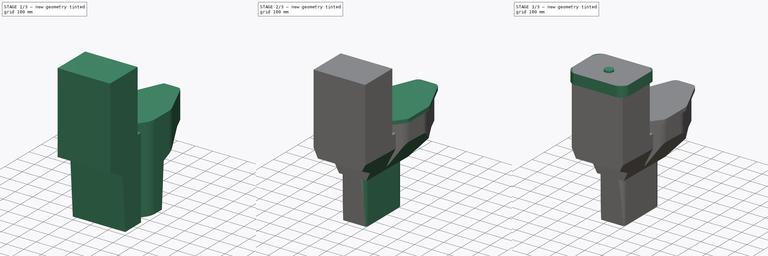
[diagram: build sequence overview — one tinted view per stage of 3, left to right]
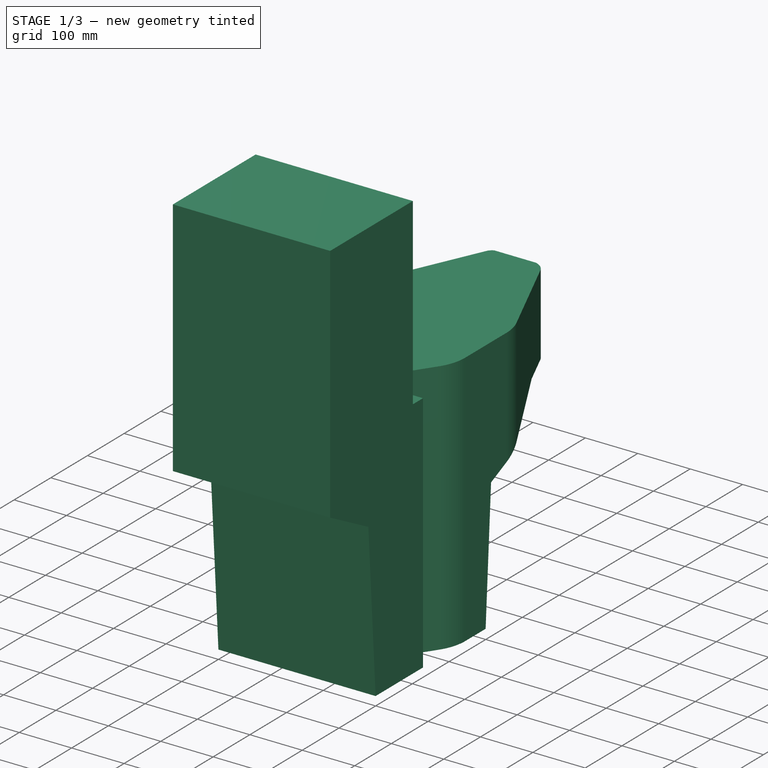
[diagram: stage 1 of 3 — iso view after this stage's code; geometry added in this stage tinted green]
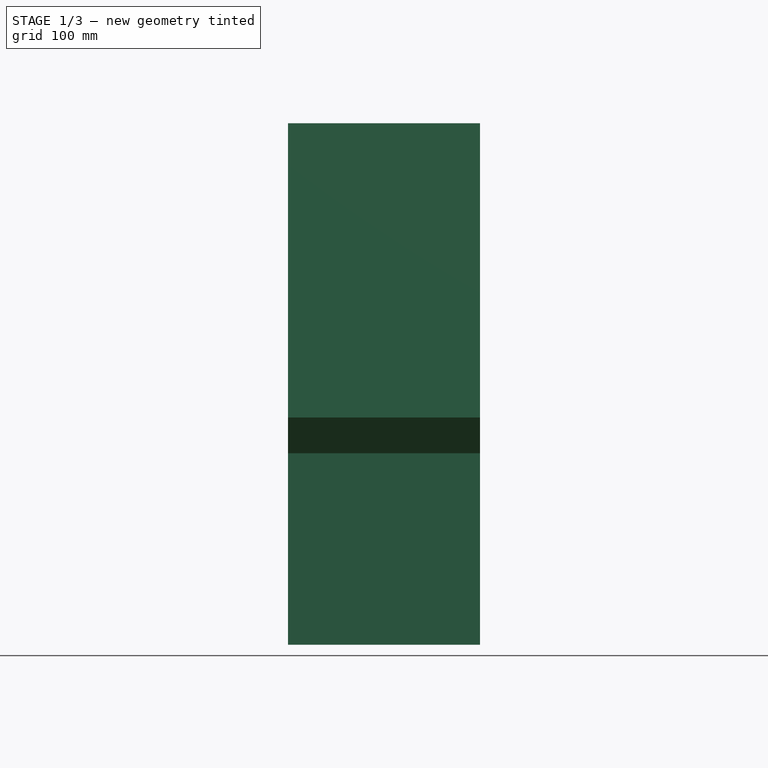
[diagram: stage 1 of 3 — front view after this stage's code; geometry added in this stage tinted green]
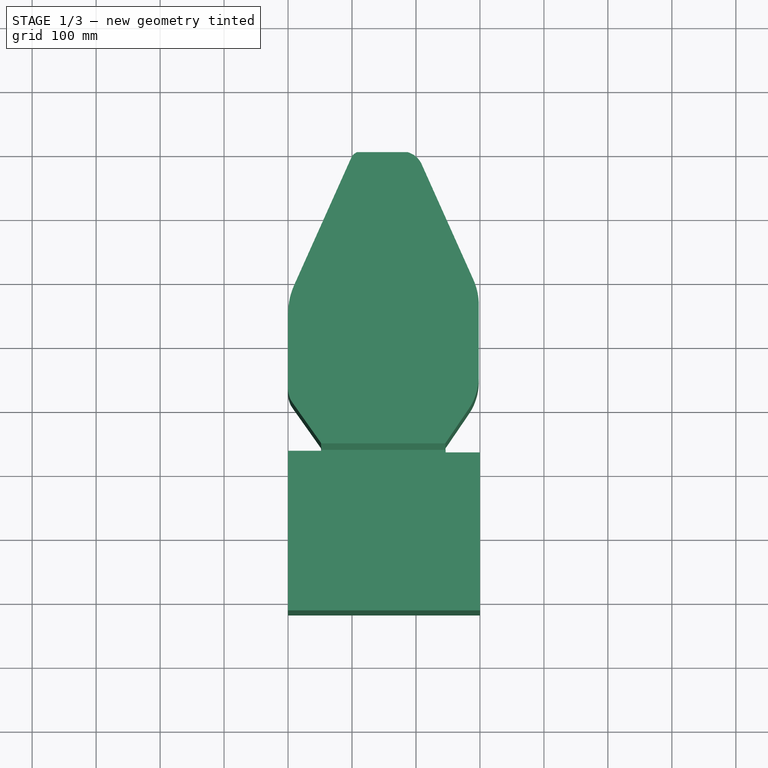
[diagram: stage 1 of 3 — top view after this stage's code; geometry added in this stage tinted green]
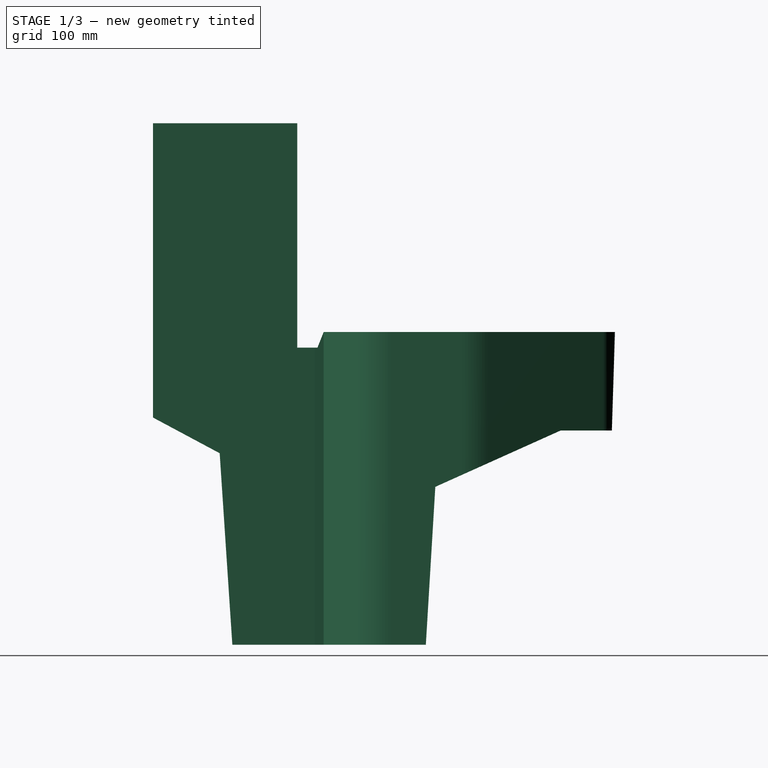
[diagram: stage 1 of 3 — right view after this stage's code; geometry added in this stage tinted green]
FCSTD DOCUMENT  (FreeCAD 1.0R39319 (Git))
Label: toilet
License: All rights reserved
LicenseURL: https://en.wikipedia.org/wiki/All_rights_reserved
objects: Sketcher::SketchObject×7, PartDesign::Pad×4, PartDesign::Pocket×3, PartDesign::Body×1
note: 36 computed .brp shape members not serialized (recipe doc carries the construction recipe); baked Part::Feature solids carry a one-line shape summary decoded from their .brp

FEATURE [Sketcher::SketchObject] Sketch
  ArcFitTolerance = 1e-06
  AttachmentSupport = -> [YZ_Plane]
  FullyConstrained = false
  MakeInternals = false
  MapMode = 5
  Placement = pos=(0,0,0) rot=(0.57735,0.57735,0.57735;2.0944rad)
  sketch-geometry (13):
    g0: LineSegment StartX=0 StartY=0 StartZ=0 EndX=-19.7955 EndY=299.346 EndZ=0
    g1: LineSegment StartX=-19.7955 StartY=299.346 StartZ=0 EndX=-123.951 EndY=355.087 EndZ=0
    g2: LineSegment StartX=-123.951 StartY=355.087 StartZ=0 EndX=-123.951 EndY=815.087 EndZ=0
    g3: LineSegment StartX=0 StartY=0 StartZ=0 EndX=302.48 EndY=0 EndZ=0
    g4: LineSegment StartX=302.48 StartY=0 StartZ=0 EndX=317.295 EndY=246.799 EndZ=0
    g5: LineSegment StartX=317.295 StartY=246.799 StartZ=0 EndX=513.113 EndY=334.823 EndZ=0
    g6: LineSegment StartX=593.243 StartY=334.823 StartZ=0 EndX=513.113 EndY=334.823 EndZ=0
    g7: LineSegment StartX=593.243 StartY=334.823 StartZ=0 EndX=598.112 EndY=488.795 EndZ=0
    g8: LineSegment StartX=598.112 StartY=488.795 StartZ=0 EndX=142.857 EndY=488.795 EndZ=0
    g9: LineSegment StartX=142.857 StartY=488.795 StartZ=0 EndX=133.119 EndY=464.45 EndZ=0
    g10: LineSegment StartX=101.47 StartY=464.45 StartZ=0 EndX=101.47 EndY=815.087 EndZ=0
    g11: LineSegment StartX=-123.951 StartY=815.087 StartZ=0 EndX=101.47 EndY=815.087 EndZ=0
    g12: LineSegment StartX=101.47 StartY=464.45 StartZ=0 EndX=133.119 EndY=464.45 EndZ=0
  constraints (23):
    c: Distance(g0) = 300
    c: Coincident(g0,g-1)
    c: Coincident(g1,g0)
    c: Distance(g2) = 460
    c: Coincident(g2,g1)
    c: Vertical(g2)
    c: Coincident(g3,g0)
    c: PointOnObject(g3,g-1)
    c: Coincident(g4,g3)
    c: Coincident(g5,g4)
    c: Coincident(g6,g5)
    c: Horizontal(g6)
    c: Coincident(g7,g6)
    c: Coincident(g8,g7)
    c: Horizontal(g8)
    c: Coincident(g9,g8)
    c: Vertical(g10)
    c: Coincident(g11,g2)
    c: Coincident(g11,g10)
    c: Horizontal(g11)
    c: Coincident(g12,g10)
    c: Coincident(g12,g9)
    c: Horizontal(g12)
FEATURE [PartDesign::Pad] Pad
  Direction = (1,0,0)
  Length = 300
  Length2 = 10
  Placement = pos=(0,0,0) rot=(1,1,1;2.0944rad)
  Profile = -> Sketch
  ReferenceAxis = -> Sketch [N_Axis]
  Refine = true
  Suppressed = false
  Type = 0
FEATURE [Sketcher::SketchObject] Sketch001
  ArcFitTolerance = 1e-06
  AttachmentSupport = -> [Pad]
  FullyConstrained = false
  MakeInternals = false
  MapMode = 5
  Placement = pos=(-5.43e-14,1.628e-13,488.795) rot=(0,0,-1;1.5708rad)
  sketch-geometry (26):
    g0: LineSegment StartX=-398.686 StartY=289.727 StartZ=0 EndX=-579.184 EndY=208.886 EndZ=0
    g1: LineSegment StartX=-599.346 StartY=177.765 StartZ=0 EndX=-599.346 EndY=114.283 EndZ=0
    g2: LineSegment StartX=-589.294 StartY=98.7641 StartZ=0 EndX=-390.58 EndY=9.71923 EndZ=0
    g3: LineSegment StartX=-345.122 StartY=0 StartZ=0 EndX=-228.798 EndY=0 EndZ=0
    g4: LineSegment StartX=-206.249 StartY=7.17371 StartZ=0 EndX=-143.518 EndY=51.5851 EndZ=0
    g5: LineSegment StartX=-143.518 StartY=51.5851 StartZ=0 EndX=-131.656 EndY=52.4323 EndZ=0
    g6: LineSegment StartX=-131.656 StartY=52.4323 StartZ=0 EndX=-131.656 EndY=-48.3921 EndZ=0
    g7: LineSegment StartX=-131.656 StartY=-48.3921 StartZ=0 EndX=-645.098 EndY=-48.3921 EndZ=0
    g8: LineSegment StartX=-645.098 StartY=-48.3921 StartZ=0 EndX=-645.098 EndY=347.28 EndZ=0
    g9: LineSegment StartX=-645.098 StartY=347.28 StartZ=0 EndX=-129.114 EndY=347.28 EndZ=0
    g10: LineSegment StartX=-129.114 StartY=347.28 StartZ=0 EndX=-129.114 EndY=246.456 EndZ=0
    g11: LineSegment StartX=-129.114 StartY=246.456 StartZ=0 EndX=-142.67 EndY=245.609 EndZ=0
    g12: LineSegment StartX=-142.67 StartY=245.609 StartZ=0 EndX=-196.823 EndY=282.504 EndZ=0
    g13: LineSegment StartX=-247.54 StartY=298.139 StartZ=0 EndX=-359.325 EndY=298.139 EndZ=0
    g14: ArcOfCircle CenterX=-565.245 CenterY=177.765 CenterZ=0 NormalX=0 NormalY=0 NormalZ=1 AngleXU=0 Radius=34.1008 StartAngle=1.99188 EndAngle=3.14159
    g15: GeomPoint [constr] X=-599.346 Y=199.856 Z=0
    g16: ArcOfCircle CenterX=-582.34 CenterY=114.283 CenterZ=0 NormalX=0 NormalY=0 NormalZ=1 AngleXU=0 Radius=17.0053 StartAngle=3.14159 EndAngle=4.29111
    g17: GeomPoint [constr] X=-599.346 Y=103.268 Z=0
    g18: ArcOfCircle CenterX=-345.122 CenterY=111.163 CenterZ=0 NormalX=0 NormalY=0 NormalZ=1 AngleXU=0 Radius=111.163 StartAngle=4.29111 EndAngle=4.71239
    g19: GeomPoint [constr] X=-368.89 Y=0 Z=0
    g20: ArcOfCircle CenterX=-228.798 CenterY=39.0235 CenterZ=0 NormalX=0 NormalY=0 NormalZ=1 AngleXU=0 Radius=39.0235 StartAngle=4.71239 EndAngle=5.32844
    g21: GeomPoint [constr] X=-216.382 Y=0 Z=0
    g22: ArcOfCircle CenterX=-359.325 CenterY=201.844 CenterZ=0 NormalX=0 NormalY=0 NormalZ=1 AngleXU=0 Radius=96.295 StartAngle=1.5708 EndAngle=1.99188
    g23: GeomPoint [constr] X=-379.904 Y=298.139 Z=0
    g24: ArcOfCircle CenterX=-247.54 CenterY=208.065 CenterZ=0 NormalX=0 NormalY=0 NormalZ=1 AngleXU=0 Radius=90.0738 StartAngle=0.972718 EndAngle=1.5708
    g25: GeomPoint [constr] X=-219.771 Y=298.139 Z=0
  constraints (41):
    c: Vertical(g1)
    c: PointOnObject(g19,g-1)
    c: PointOnObject(g21,g-1)
    c: Coincident(g5,g4)
    c: Coincident(g6,g5)
    c: Vertical(g6)
    c: Coincident(g7,g6)
    c: Horizontal(g7)
    c: Coincident(g8,g7)
    c: Vertical(g8)
    c: Coincident(g9,g8)
    c: Horizontal(g9)
    c: Coincident(g10,g9)
    c: Vertical(g10)
    c: Coincident(g11,g10)
    c: Coincident(g12,g11)
    c: Horizontal(g13)
    c: PointOnObject(g15,g1)
    c: PointOnObject(g15,g0)
    c: Tangent(g1,g14) = -1.5708
    c: Tangent(g0,g14) = -1.5708
    c: PointOnObject(g17,g1)
    c: PointOnObject(g17,g2)
    c: Tangent(g1,g16) = -1.5708
    c: Tangent(g2,g16) = -1.5708
    c: PointOnObject(g19,g2)
    c: PointOnObject(g19,g3)
    c: Tangent(g2,g18) = -1.5708
    c: Tangent(g3,g18) = -1.5708
    c: PointOnObject(g21,g3)
    c: PointOnObject(g21,g4)
    c: Tangent(g3,g20) = -1.5708
    c: Tangent(g4,g20) = -1.5708
    c: PointOnObject(g23,g0)
    c: PointOnObject(g23,g13)
    c: Tangent(g0,g22) = -1.5708
    c: Tangent(g13,g22) = -1.5708
    c: PointOnObject(g25,g13)
    c: PointOnObject(g25,g12)
    c: Tangent(g13,g24) = -1.5708
    c: Tangent(g12,g24) = -1.5708
FEATURE [PartDesign::Pocket] Pocket
  BaseFeature = -> Pad
  Direction = (0,0,-1)
  Length = 5
  Length2 = 5
  Placement = pos=(0,0,0) rot=(1,1,1;2.0944rad)
  Profile = -> Sketch001
  ReferenceAxis = -> Sketch001 [N_Axis]
  Refine = true
  Suppressed = false
  Type = 1
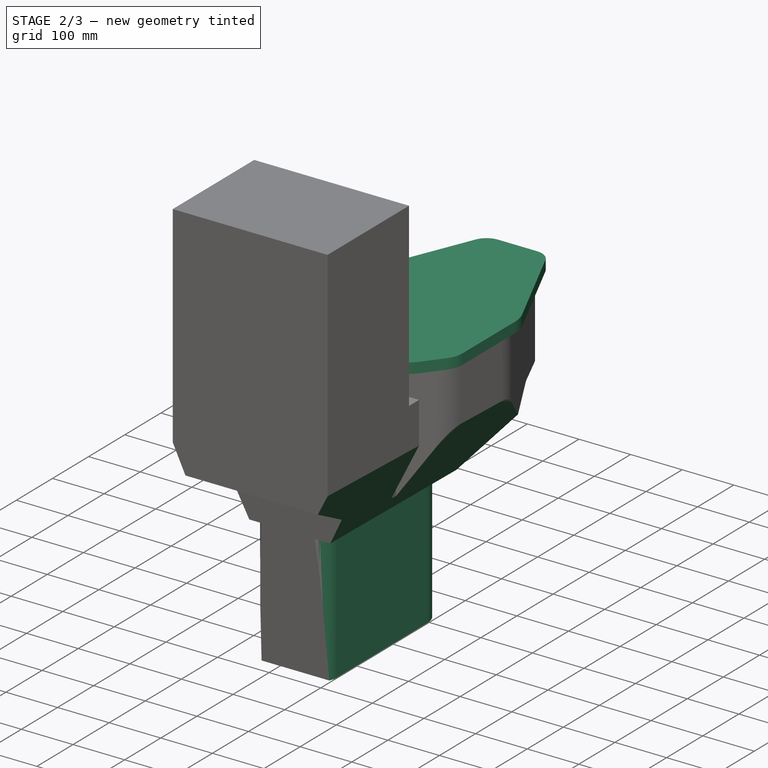
[diagram: stage 2 of 3 — iso view after this stage's code; geometry added in this stage tinted green]
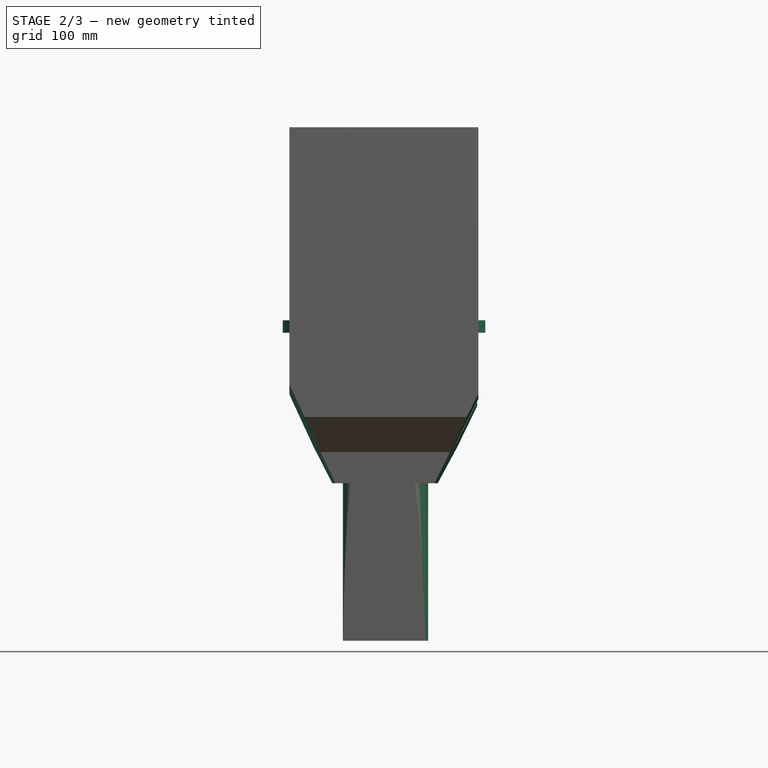
[diagram: stage 2 of 3 — front view after this stage's code; geometry added in this stage tinted green]
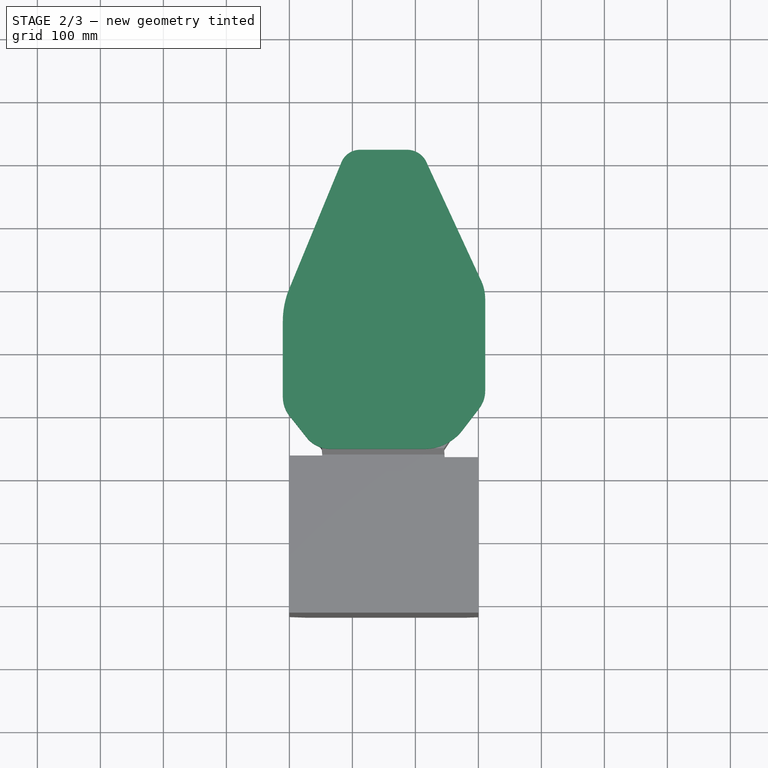
[diagram: stage 2 of 3 — top view after this stage's code; geometry added in this stage tinted green]
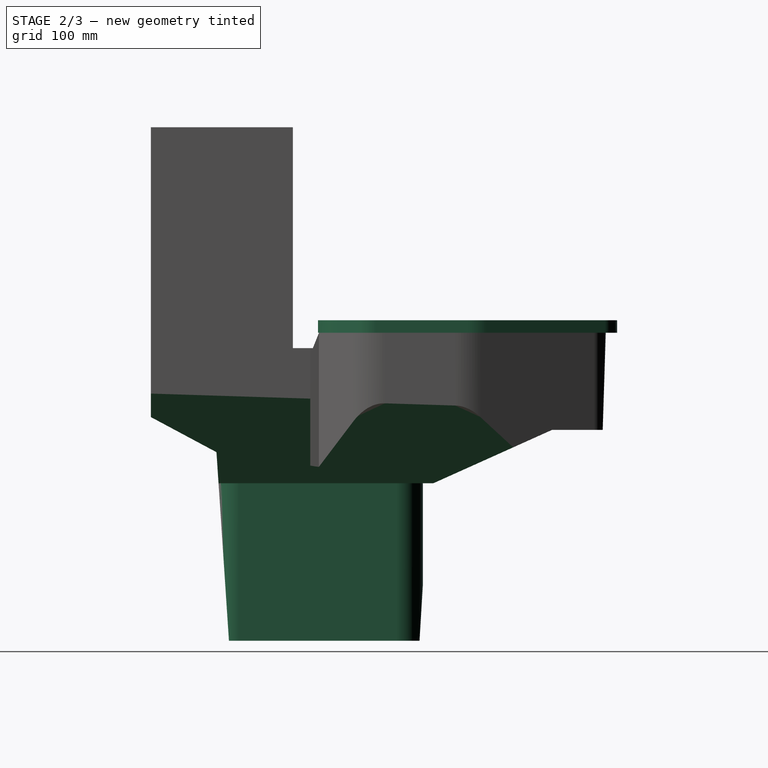
[diagram: stage 2 of 3 — right view after this stage's code; geometry added in this stage tinted green]
FEATURE [Sketcher::SketchObject] Sketch002
  ArcFitTolerance = 1e-06
  AttachmentSupport = -> [Pocket]
  FullyConstrained = false
  MakeInternals = false
  MapMode = 5
  Placement = pos=(0,0,0) rot=(0.707107,0.707107,0;3.14159rad)
  sketch-geometry (16):
    g0: LineSegment StartX=-178.085 StartY=365.735 StartZ=0 EndX=-178.085 EndY=-124.152 EndZ=0
    g1: LineSegment StartX=-178.085 StartY=-124.152 StartZ=0 EndX=640.697 EndY=-124.152 EndZ=0
    g2: LineSegment StartX=640.697 StartY=-124.152 StartZ=0 EndX=640.697 EndY=365.735 EndZ=0
    g3: LineSegment StartX=640.697 StartY=365.735 StartZ=0 EndX=-178.085 EndY=365.735 EndZ=0
    g4: LineSegment StartX=-19.8534 StartY=184.188 StartZ=0 EndX=-19.8534 EndY=108.754 EndZ=0
    g5: LineSegment StartX=3.92612 StartY=84.9741 StartZ=0 EndX=257.439 EndY=84.9741 EndZ=0
    g6: LineSegment StartX=307.73 StartY=135.265 StartZ=0 EndX=307.73 EndY=178.492 EndZ=0
    g7: LineSegment StartX=265.921 StartY=220.301 StartZ=0 EndX=16.2601 EndY=220.301 EndZ=0
    g8: ArcOfCircle CenterX=16.2601 CenterY=184.188 CenterZ=0 NormalX=0 NormalY=0 NormalZ=1 AngleXU=0 Radius=36.1134 StartAngle=1.5708 EndAngle=3.14159
    g9: GeomPoint [constr] X=-19.8534 Y=220.301 Z=0
    g10: ArcOfCircle CenterX=3.92612 CenterY=108.754 CenterZ=0 NormalX=0 NormalY=0 NormalZ=1 AngleXU=0 Radius=23.7795 StartAngle=3.14159 EndAngle=4.71239
    g11: GeomPoint [constr] X=-19.8534 Y=84.9741 Z=0
    g12: ArcOfCircle CenterX=257.439 CenterY=135.265 CenterZ=0 NormalX=0 NormalY=0 NormalZ=1 AngleXU=0 Radius=50.2909 StartAngle=4.71239 EndAngle=6.28319
    g13: GeomPoint [constr] X=307.73 Y=84.9741 Z=0
    g14: ArcOfCircle CenterX=265.921 CenterY=178.492 CenterZ=0 NormalX=0 NormalY=0 NormalZ=1 AngleXU=0 Radius=41.8086 StartAngle=3e-16 EndAngle=1.5708
    g15: GeomPoint [constr] X=307.73 Y=220.301 Z=0
  constraints (28):
    c: Coincident(g0,g1)
    c: Coincident(g1,g2)
    c: Coincident(g2,g3)
    c: Coincident(g3,g0)
    c: Vertical(g0)
    c: Vertical(g2)
    c: Horizontal(g1)
    c: Horizontal(g3)
    c: Vertical(g4)
    c: Vertical(g6)
    c: Horizontal(g5)
    c: Horizontal(g7)
    c: PointOnObject(g9,g4)
    c: PointOnObject(g9,g7)
    c: Tangent(g4,g8) = -1.5708
    c: Tangent(g7,g8) = -1.5708
    c: PointOnObject(g11,g4)
    c: PointOnObject(g11,g5)
    c: Tangent(g4,g10) = -1.5708
    c: Tangent(g5,g10) = -1.5708
    c: PointOnObject(g13,g5)
    c: PointOnObject(g13,g6)
    c: Tangent(g5,g12) = -1.5708
    c: Tangent(g6,g12) = -1.5708
    c: PointOnObject(g15,g7)
    c: PointOnObject(g15,g6)
    c: Tangent(g7,g14) = -1.5708
    c: Tangent(g6,g14) = -1.5708
FEATURE [PartDesign::Pocket] Pocket001
  BaseFeature = -> Pocket
  Direction = (0,0,1)
  Length = 250
  Length2 = 5
  Placement = pos=(0,0,0) rot=(1,1,1;2.0944rad)
  Profile = -> Sketch002
  ReferenceAxis = -> Sketch002 [N_Axis]
  Refine = true
  Suppressed = false
  Type = 0
FEATURE [Sketcher::SketchObject] Sketch003
  ArcFitTolerance = 1e-06
  AttachmentSupport = -> [Pocket001]
  FullyConstrained = false
  MakeInternals = false
  MapMode = 5
  Placement = pos=(1.436e-13,582.073,-18.4068) rot=(0.583339,0.583339,0.565183;4.17044rad)
  sketch-geometry (10):
    g0: LineSegment StartX=435.499 StartY=463.28 StartZ=0 EndX=-86.9749 EndY=463.28 EndZ=0
    g1: LineSegment StartX=-86.9749 StartY=463.28 StartZ=0 EndX=-86.9749 EndY=225.515 EndZ=0
    g2: LineSegment StartX=-86.9749 StartY=-130.246 StartZ=0 EndX=441.644 EndY=-130.246 EndZ=0
    g3: LineSegment StartX=435.499 StartY=323.835 StartZ=0 EndX=240.395 EndY=225.515 EndZ=0
    g4: LineSegment StartX=232.713 StartY=81.1069 StartZ=0 EndX=441.644 EndY=-18.7497 EndZ=0
    g5: LineSegment StartX=441.644 StartY=-18.7497 StartZ=0 EndX=441.644 EndY=-130.246 EndZ=0
    g6: LineSegment StartX=435.499 StartY=323.835 StartZ=0 EndX=435.499 EndY=463.28 EndZ=0
    g7: LineSegment StartX=240.395 StartY=225.515 StartZ=0 EndX=-86.9749 EndY=225.515 EndZ=0
    g8: LineSegment StartX=232.713 StartY=81.1069 StartZ=0 EndX=-86.9749 EndY=81.1069 EndZ=0
    g9: LineSegment StartX=-86.9749 StartY=81.1069 StartZ=0 EndX=-86.9749 EndY=-130.246 EndZ=0
  constraints (18):
    c: Coincident(g0,g1)
    c: Coincident(g9,g2)
    c: Horizontal(g0)
    c: Horizontal(g2)
    c: Vertical(g1)
    c: Coincident(g5,g4)
    c: Vertical(g5)
    c: Coincident(g6,g3)
    c: Vertical(g6)
    c: Coincident(g7,g3)
    c: Horizontal(g7)
    c: Coincident(g8,g4)
    c: PointOnObject(g8,g9)
    c: Horizontal(g8)
    c: Coincident(g1,g7)
    c: PointOnObject(g9,g8)
    c: Coincident(g0,g6)
    c: Coincident(g2,g5)
FEATURE [PartDesign::Pocket] Pocket002
  BaseFeature = -> Pocket001
  Direction = (0,-0.9995,0.031607)
  Length = 5
  Length2 = 5
  Placement = pos=(0,0,0) rot=(1,1,1;2.0944rad)
  Profile = -> Sketch003
  ReferenceAxis = -> Sketch003 [N_Axis]
  Refine = true
  Suppressed = false
  Type = 1
FEATURE [Sketcher::SketchObject] Sketch004
  ArcFitTolerance = 1e-06
  AttachmentSupport = -> [Pocket002]
  FullyConstrained = false
  MakeInternals = false
  MapMode = 5
  Placement = pos=(-5.427e-13,3.256e-13,488.795) rot=(0,0,-1;1.5708rad)
  sketch-geometry (22):
    g0: LineSegment StartX=-171.193 StartY=274.88 StartZ=0 EndX=-205.725 EndY=301.37 EndZ=0
    g1: LineSegment StartX=-233.586 StartY=310.825 StartZ=0 EndX=-379.427 EndY=310.825 EndZ=0
    g2: LineSegment StartX=-408.286 StartY=304.483 StartZ=0 EndX=-596.74 EndY=217.452 EndZ=0
    g3: LineSegment StartX=-616.189 StartY=187.047 StartZ=0 EndX=-616.189 EndY=112.118 EndZ=0
    g4: LineSegment StartX=-596.485 StartY=82.6702 StartZ=0 EndX=-395.776 EndY=-0.157481 EndZ=0
    g5: LineSegment StartX=-344.039 StartY=-10.4131 StartZ=0 EndX=-224.041 EndY=-10.4131 EndZ=0
    g6: LineSegment StartX=-194.076 StartY=-0.00170568 StartZ=0 EndX=-159.303 EndY=27.4802 EndZ=0
    g7: LineSegment StartX=-141.354 StartY=64.5422 StartZ=0 EndX=-141.354 EndY=214.384 EndZ=0
    g8: ArcOfCircle CenterX=-233.586 CenterY=265.05 CenterZ=0 NormalX=0 NormalY=0 NormalZ=1 AngleXU=0 Radius=45.7752 StartAngle=0.916442 EndAngle=1.5708
    g9: GeomPoint [constr] X=-218.051 Y=310.825 Z=0
    g10: ArcOfCircle CenterX=-379.427 CenterY=241.991 CenterZ=0 NormalX=0 NormalY=0 NormalZ=1 AngleXU=0 Radius=68.8337 StartAngle=1.5708 EndAngle=2.00343
    g11: GeomPoint [constr] X=-394.553 Y=310.825 Z=0
    g12: ArcOfCircle CenterX=-582.698 CenterY=187.047 CenterZ=0 NormalX=0 NormalY=0 NormalZ=1 AngleXU=0 Radius=33.4904 StartAngle=2.00343 EndAngle=3.14159
    g13: ArcOfCircle CenterX=-584.332 CenterY=112.118 CenterZ=0 NormalX=0 NormalY=0 NormalZ=1 AngleXU=0 Radius=31.8563 StartAngle=3.14159 EndAngle=4.321
    g14: GeomPoint [constr] X=-616.189 Y=90.8016 Z=0
    g15: ArcOfCircle CenterX=-344.039 CenterY=125.21 CenterZ=0 NormalX=0 NormalY=0 NormalZ=1 AngleXU=0 Radius=135.623 StartAngle=4.321 EndAngle=4.71239
    g16: GeomPoint [constr] X=-370.924 Y=-10.4131 Z=0
    g17: ArcOfCircle CenterX=-224.041 CenterY=37.913 CenterZ=0 NormalX=0 NormalY=0 NormalZ=1 AngleXU=0 Radius=48.3262 StartAngle=4.71239 EndAngle=5.3812
    g18: ArcOfCircle CenterX=-188.593 CenterY=64.5422 CenterZ=0 NormalX=0 NormalY=0 NormalZ=1 AngleXU=0 Radius=47.2392 StartAngle=5.3812 EndAngle=6.28319
    g19: GeomPoint [constr] X=-141.354 Y=41.6652 Z=0
    g20: ArcOfCircle CenterX=-217.599 CenterY=214.384 CenterZ=0 NormalX=0 NormalY=0 NormalZ=1 AngleXU=0 Radius=76.2444 StartAngle=0 EndAngle=0.916442
    g21: GeomPoint [constr] X=-141.354 Y=251.991 Z=0
  constraints (32):
    c: Horizontal(g1)
    c: Vertical(g3)
    c: Horizontal(g5)
    c: Vertical(g7)
    c: PointOnObject(g9,g0)
    c: PointOnObject(g9,g1)
    c: Tangent(g0,g8) = -1.5708
    c: Tangent(g1,g8) = -1.5708
    c: PointOnObject(g11,g1)
    c: PointOnObject(g11,g2)
    c: Tangent(g1,g10) = -1.5708
    c: Tangent(g2,g10) = -1.5708
    c: Tangent(g2,g12) = -1.5708
    c: Tangent(g3,g12) = -1.5708
    c: PointOnObject(g14,g3)
    c: PointOnObject(g14,g4)
    c: Tangent(g3,g13) = -1.5708
    c: Tangent(g4,g13) = -1.5708
    c: PointOnObject(g16,g4)
    c: PointOnObject(g16,g5)
    c: Tangent(g4,g15) = -1.5708
    c: Tangent(g5,g15) = -1.5708
    c: Tangent(g5,g17) = -1.5708
    c: Tangent(g6,g17) = -1.5708
    c: PointOnObject(g19,g6)
    c: PointOnObject(g19,g7)
    c: Tangent(g6,g18) = -1.5708
    c: Tangent(g7,g18) = -1.5708
    c: PointOnObject(g21,g7)
    c: PointOnObject(g21,g0)
    c: Tangent(g7,g20) = -1.5708
    c: Tangent(g0,g20) = -1.5708
FEATURE [PartDesign::Pad] Pad001
  BaseFeature = -> Pocket002
  Direction = (-1.1e-15,0,1)
  Length = 20
  Length2 = 10
  Placement = pos=(0,0,0) rot=(1,1,1;2.0944rad)
  Profile = -> Sketch004
  ReferenceAxis = -> Sketch004 [N_Axis]
  Refine = true
  Suppressed = false
  Type = 0
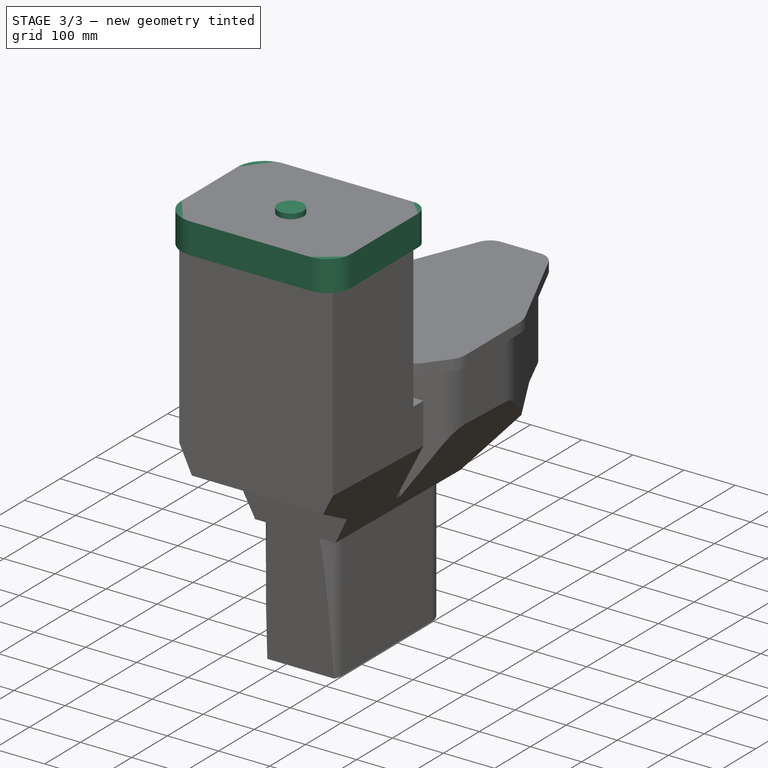
[diagram: stage 3 of 3 — iso view after this stage's code; geometry added in this stage tinted green]
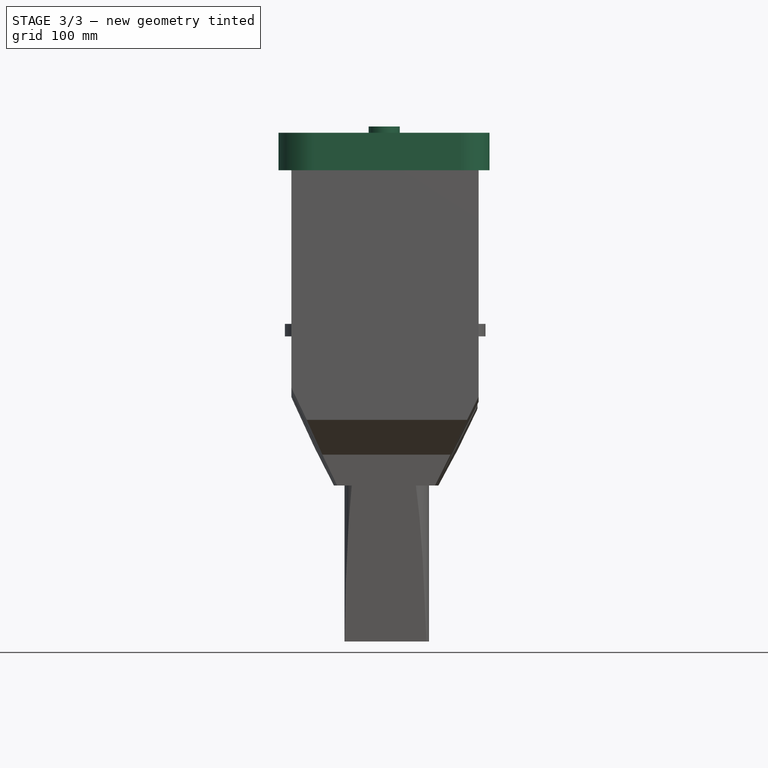
[diagram: stage 3 of 3 — front view after this stage's code; geometry added in this stage tinted green]
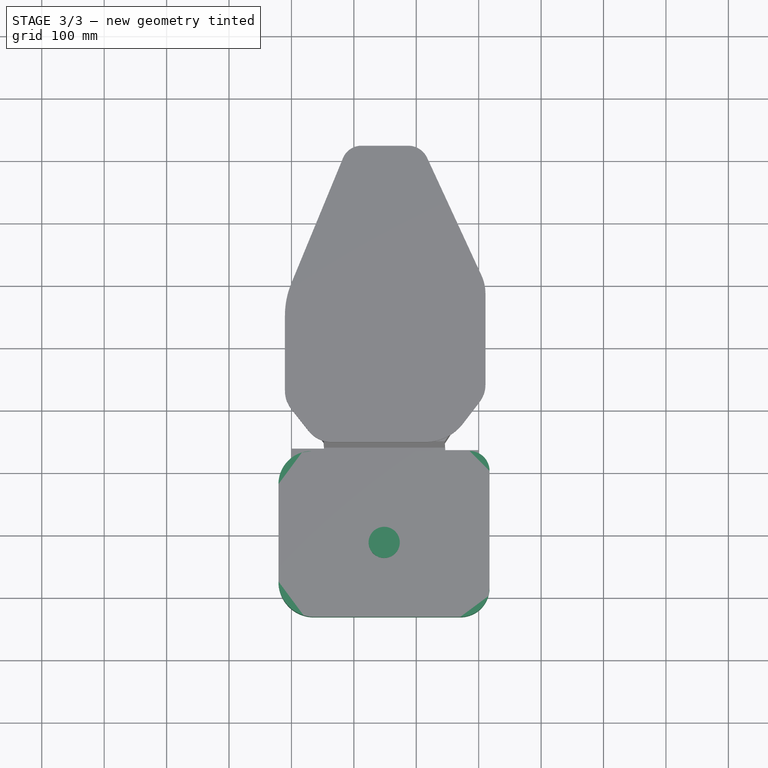
[diagram: stage 3 of 3 — top view after this stage's code; geometry added in this stage tinted green]
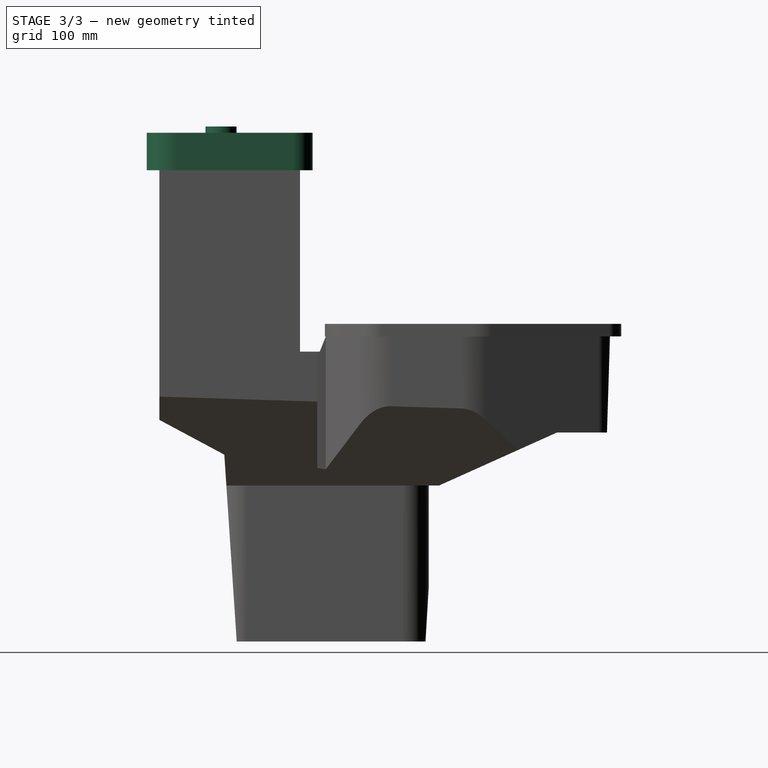
[diagram: stage 3 of 3 — right view after this stage's code; geometry added in this stage tinted green]
FEATURE [Sketcher::SketchObject] Sketch005
  ArcFitTolerance = 1e-06
  AttachmentSupport = -> [Pad001]
  FullyConstrained = false
  MakeInternals = false
  MapMode = 5
  Placement = pos=(-1.1764e-12,6.334e-13,815.087) rot=(0,0,-1;1.5708rad)
  sketch-geometry (12):
    g0: LineSegment StartX=-121.609 StartY=285.532 StartZ=0 EndX=-121.609 EndY=32.202 EndZ=0
    g1: LineSegment StartX=-68.5883 StartY=-20.8182 StartZ=0 EndX=87.4059 EndY=-20.8182 EndZ=0
    g2: LineSegment StartX=144.141 StartY=35.9174 StartZ=0 EndX=144.141 EndY=270.594 EndZ=0
    g3: LineSegment StartX=97.3169 StartY=317.419 StartZ=0 EndX=-89.7215 EndY=317.419 EndZ=0
    g4: ArcOfCircle CenterX=-89.7215 CenterY=285.532 CenterZ=0 NormalX=0 NormalY=0 NormalZ=1 AngleXU=0 Radius=31.887 StartAngle=1.5708 EndAngle=3.14159
    g5: GeomPoint [constr] X=-121.609 Y=317.419 Z=0
    g6: ArcOfCircle CenterX=97.3169 CenterY=270.594 CenterZ=0 NormalX=0 NormalY=0 NormalZ=1 AngleXU=0 Radius=46.8246 StartAngle=0 EndAngle=1.5708
    g7: GeomPoint [constr] X=144.141 Y=317.419 Z=0
    g8: ArcOfCircle CenterX=87.4059 CenterY=35.9174 CenterZ=0 NormalX=0 NormalY=0 NormalZ=1 AngleXU=0 Radius=56.7356 StartAngle=4.71239 EndAngle=6.28319
    g9: GeomPoint [constr] X=144.141 Y=-20.8182 Z=0
    g10: ArcOfCircle CenterX=-68.5883 CenterY=32.202 CenterZ=0 NormalX=0 NormalY=0 NormalZ=1 AngleXU=0 Radius=53.0202 StartAngle=3.14159 EndAngle=4.71239
    g11: GeomPoint [constr] X=-121.609 Y=-20.8182 Z=0
  constraints (20):
    c: Vertical(g0)
    c: Vertical(g2)
    c: Horizontal(g1)
    c: Horizontal(g3)
    c: PointOnObject(g5,g3)
    c: PointOnObject(g5,g0)
    c: Tangent(g3,g4) = -1.5708
    c: Tangent(g0,g4) = -1.5708
    c: PointOnObject(g7,g3)
    c: PointOnObject(g7,g2)
    c: Tangent(g3,g6) = -1.5708
    c: Tangent(g2,g6) = -1.5708
    c: PointOnObject(g9,g2)
    c: PointOnObject(g9,g1)
    c: Tangent(g2,g8) = -1.5708
    c: Tangent(g1,g8) = -1.5708
    c: PointOnObject(g11,g1)
    c: PointOnObject(g11,g0)
    c: Tangent(g1,g10) = -1.5708
    c: Tangent(g0,g10) = -1.5708
FEATURE [PartDesign::Pad] Pad002
  BaseFeature = -> Pad001
  Direction = (-1.4e-15,0,1)
  Length = 60
  Length2 = 10
  Placement = pos=(0,0,0) rot=(1,1,1;2.0944rad)
  Profile = -> Sketch005
  ReferenceAxis = -> Sketch005 [N_Axis]
  Refine = true
  Reversed = true
  Suppressed = false
  Type = 0
FEATURE [Sketcher::SketchObject] Sketch006
  ArcFitTolerance = 1e-06
  AttachmentSupport = -> [Pad002]
  FullyConstrained = false
  MakeInternals = false
  MapMode = 5
  Placement = pos=(-1.2188e-12,3.264e-13,815.087) rot=(0,0,-1;1.5708rad)
  sketch-geometry (1):
    g0: Circle CenterX=24.9694 CenterY=148.605 CenterZ=0 NormalX=0 NormalY=0 NormalZ=1 AngleXU=0 Radius=24.9694
  constraints (1):
    c: Tangent(g0,g-2)
FEATURE [PartDesign::Pad] Pad003
  BaseFeature = -> Pad002
  Direction = (-1.5e-15,0,1)
  Length = 10
  Length2 = 10
  Placement = pos=(0,0,0) rot=(1,1,1;2.0944rad)
  Profile = -> Sketch006
  ReferenceAxis = -> Sketch006 [N_Axis]
  Refine = true
  Suppressed = false
  Type = 0
FEATURE [PartDesign::Body] Body
  AllowCompound = false
  Group = -> [Sketch,Pad,Sketch001,Pocket,Sketch002,Pocket001,Sketch003,Pocket002,Sketch004,Pad001,Sketch005,Pad002,Sketch006,Pad003]
  Origin = -> Origin
  Tip = -> Pad003
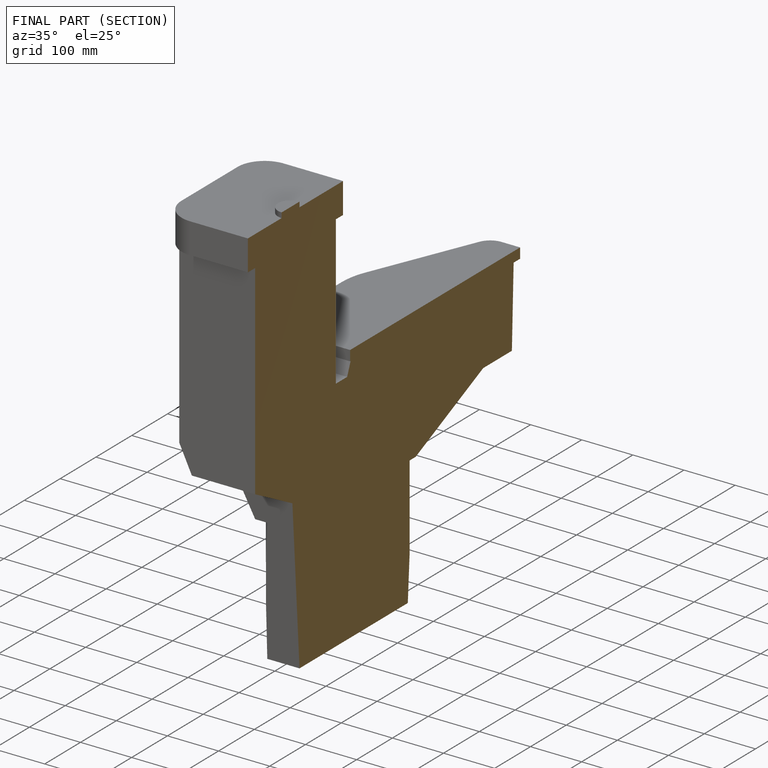
[diagram: finished part — half-section view (interior)]
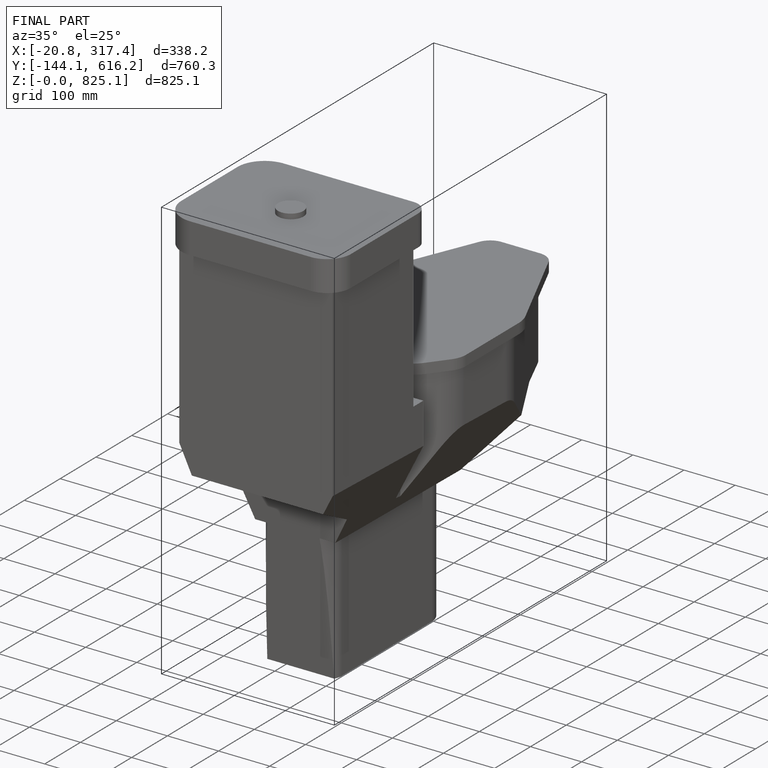
[diagram: finished part — iso view with bounding-box wireframe]
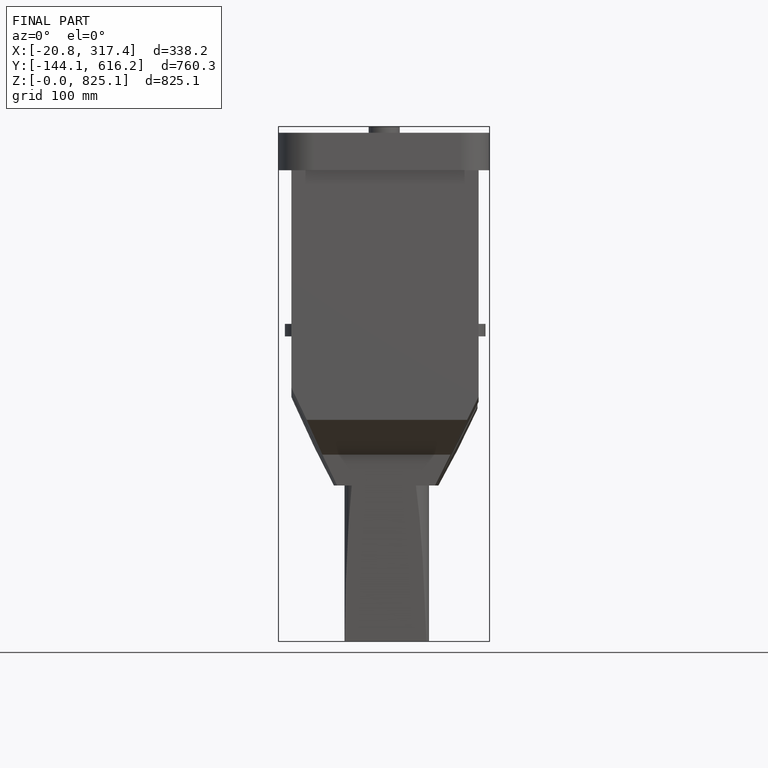
[diagram: finished part — front view with bounding-box wireframe]
